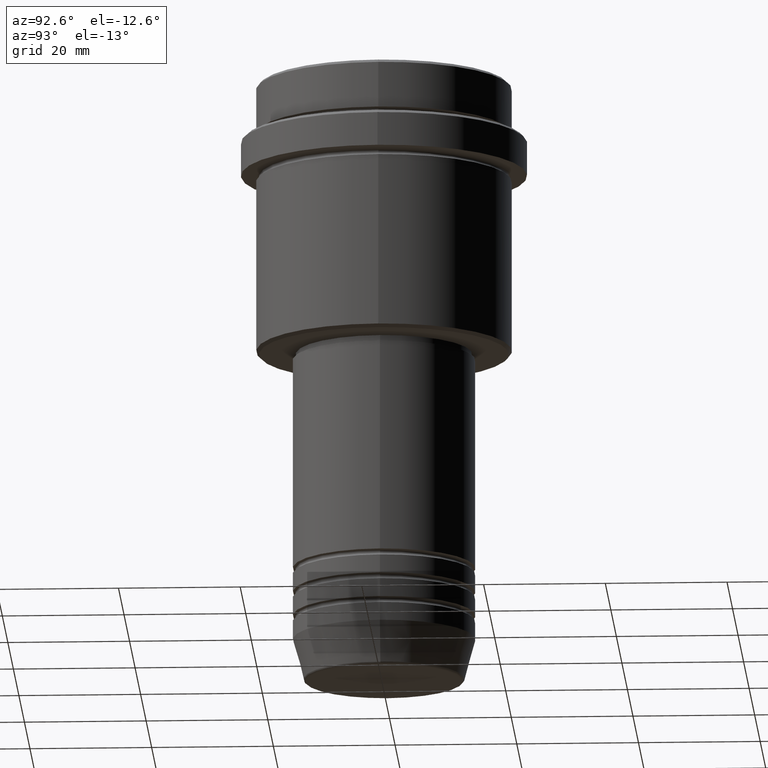
[diagram: clean part render]
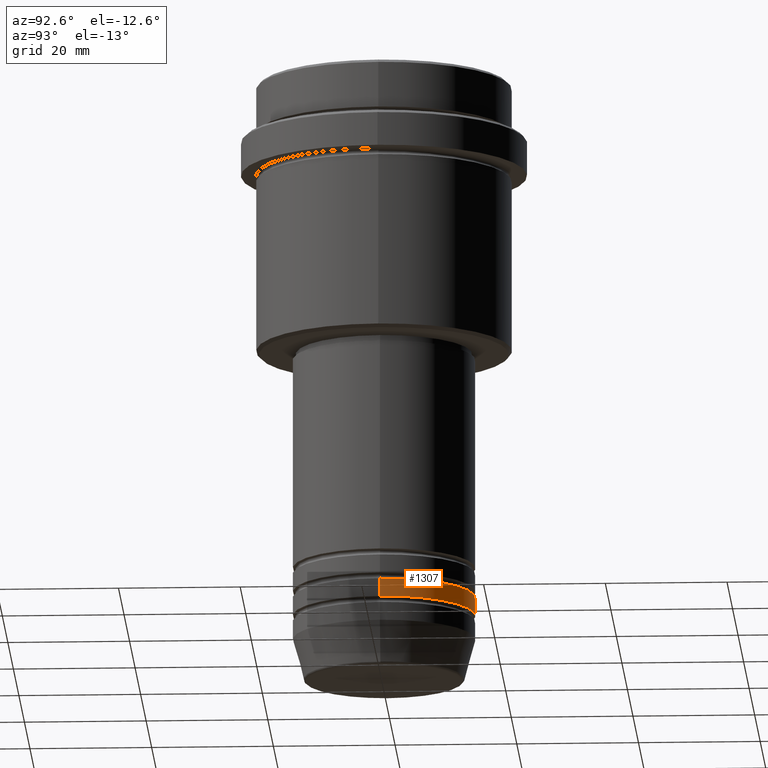
[diagram: same view with one face highlighted and labeled with its STEP entity id]
A machine part, auxiliary view. The second image highlights one B-rep face of the part: STEP entity #1307.
In plain terms, the highlighted cylindrical surface (partial cylindrical patch) has radius 15 mm, axis along (-0, -0, 1).
Its self-contained STEP definition (entity closure, byte-faithful):
#20 = LINE ( 'NONE', #1100, #347 ) ;
#39 = DIRECTION ( 'NONE',  ( -0.000000000000000000, -0.000000000000000000, 1.000000000000000000 ) ) ;
#60 = VERTEX_POINT ( 'NONE', #956 ) ;
#109 = VERTEX_POINT ( 'NONE', #1339 ) ;
#146 = DIRECTION ( 'NONE',  ( 1.000000000000000000, 0.000000000000000000, 0.000000000000000000 ) ) ;
#240 = AXIS2_PLACEMENT_3D ( 'NONE', #584, #1137, #1036 ) ;
#241 = CARTESIAN_POINT ( 'NONE',  ( 0.000000000000000000, 0.000000000000000000, 0.000000000000000000 ) ) ;
#347 = VECTOR ( 'NONE', #554, 1000.000000000000000 ) ;
#368 = ORIENTED_EDGE ( 'NONE', *, *, #1133, .F. ) ;
#433 = AXIS2_PLACEMENT_3D ( 'NONE', #515, #39, #466 ) ;
#458 = VECTOR ( 'NONE', #1397, 1000.000000000000000 ) ;
#466 = DIRECTION ( 'NONE',  ( 1.000000000000000000, 0.000000000000000000, 0.000000000000000000 ) ) ;
#515 = CARTESIAN_POINT ( 'NONE',  ( 0.000000000000000000, 0.000000000000000000, -85.99999999999988631 ) ) ;
#554 = DIRECTION ( 'NONE',  ( -0.000000000000000000, -0.000000000000000000, 1.000000000000000000 ) ) ;
#584 = CARTESIAN_POINT ( 'NONE',  ( 0.000000000000000000, 0.000000000000000000, -88.99999999999988631 ) ) ;
#600 = VERTEX_POINT ( 'NONE', #665 ) ;
#628 = CARTESIAN_POINT ( 'NONE',  ( 15.00000000000000000, 0.000000000000000000, 0.000000000000000000 ) ) ;
#665 = CARTESIAN_POINT ( 'NONE',  ( -15.00000000000000000, 1.836970198721029589E-15, -88.99999999999988631 ) ) ;
#672 = DIRECTION ( 'NONE',  ( -0.000000000000000000, -0.000000000000000000, 1.000000000000000000 ) ) ;
#681 = ORIENTED_EDGE ( 'NONE', *, *, #766, .T. ) ;
#695 = EDGE_CURVE ( 'NONE', #1350, #109, #803, .T. ) ;
#766 = EDGE_CURVE ( 'NONE', #600, #109, #20, .T. ) ;
#786 = CYLINDRICAL_SURFACE ( 'NONE', #1219, 15.00000000000000000 ) ;
#803 = CIRCLE ( 'NONE', #433, 15.00000000000000000 ) ;
#892 = ORIENTED_EDGE ( 'NONE', *, *, #955, .T. ) ;
#955 = EDGE_CURVE ( 'NONE', #60, #600, #1241, .T. ) ;
#956 = CARTESIAN_POINT ( 'NONE',  ( 15.00000000000000000, 0.000000000000000000, -88.99999999999988631 ) ) ;
#1036 = DIRECTION ( 'NONE',  ( 1.000000000000000000, 0.000000000000000000, 0.000000000000000000 ) ) ;
#1082 = ORIENTED_EDGE ( 'NONE', *, *, #695, .F. ) ;
#1100 = CARTESIAN_POINT ( 'NONE',  ( -15.00000000000000000, 1.836970198721029589E-15, 0.000000000000000000 ) ) ;
#1127 = CARTESIAN_POINT ( 'NONE',  ( 15.00000000000000000, 0.000000000000000000, -85.99999999999988631 ) ) ;
#1133 = EDGE_CURVE ( 'NONE', #60, #1350, #1185, .T. ) ;
#1137 = DIRECTION ( 'NONE',  ( -0.000000000000000000, -0.000000000000000000, 1.000000000000000000 ) ) ;
#1139 = EDGE_LOOP ( 'NONE', ( #892, #681, #1082, #368 ) ) ;
#1185 = LINE ( 'NONE', #628, #458 ) ;
#1212 = FACE_OUTER_BOUND ( 'NONE', #1139, .T. ) ;
#1219 = AXIS2_PLACEMENT_3D ( 'NONE', #241, #672, #146 ) ;
#1241 = CIRCLE ( 'NONE', #240, 15.00000000000000000 ) ;
#1307 = ADVANCED_FACE ( 'NONE', ( #1212 ), #786, .T. ) ;
#1339 = CARTESIAN_POINT ( 'NONE',  ( -15.00000000000000000, 1.836970198721029589E-15, -85.99999999999988631 ) ) ;
#1350 = VERTEX_POINT ( 'NONE', #1127 ) ;
#1397 = DIRECTION ( 'NONE',  ( -0.000000000000000000, -0.000000000000000000, 1.000000000000000000 ) ) ;